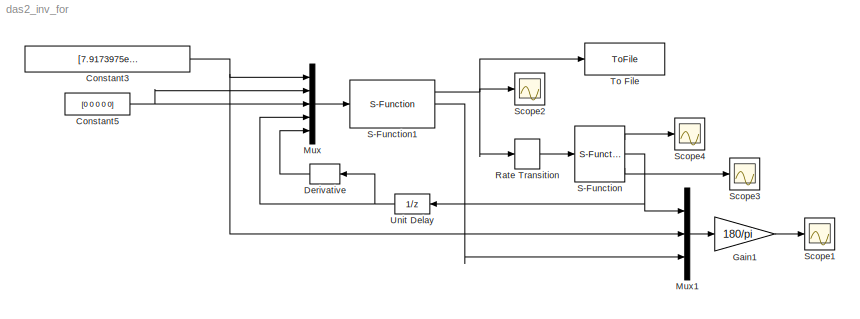
MODEL das2_inv_for
KIND model
BLOCK [Constant] Constant3
  SampleTime = 0.001
  Value = [7.9173975e-001  3.2125049e-001 -1.4018355e+000  2.3036411e-001  1.8730804e+000]
BLOCK [Constant] Constant5
  SampleTime = 0.001
  Value = [0 0 0 0 0]
BLOCK [Derivative] Derivative
BLOCK [Gain] Gain1
  Gain = 180/pi
  OutDataTypeMode = Inherit via internal rule
  ParameterDataTypeMode = Inherit via internal rule
  SaturateOnIntegerOverflow = off
BLOCK [Mux] Mux
  DisplayOption = bar
  Inputs = 5
  Ports = [5, 1]
BLOCK [Mux] Mux1
  DisplayOption = bar
  Inputs = 3
  Ports = [3, 1]
BLOCK [RateTransition] Rate Transition
BLOCK [S-Function] S-Function
  FunctionName = das2sim
  Ports = [1, 3]
BLOCK [S-Function] S-Function1
  FunctionName = das2sim_inverse
  Ports = [1, 3]
BLOCK [Scope] Scope1
  DataFormat = Array
  Floating = off
  LimitDataPoints = off
  NumInputPorts = 1
  Ports = [1]
  SampleTime = 0
  SaveName = angles
  SaveToWorkspace = on
  YMax = 125
  YMin = -100
  ZoomMode = yonly
BLOCK [Scope] Scope2
  DataFormat = Array
  Floating = off
  LimitDataPoints = off
  NumInputPorts = 1
  Ports = [1]
  SampleTime = 0
  SaveName = act
  SaveToWorkspace = on
  YMax = 1
  YMin = 0
BLOCK [Scope] Scope3
  DataFormat = StructureWithTime
  Floating = off
  LimitDataPoints = off
  NumInputPorts = 1
  Ports = [1]
  SampleTime = 0
  YMax = 0.3
  YMin = 0
  ZoomMode = yonly
BLOCK [Scope] Scope4
  DataFormat = StructureWithTime
  Floating = off
  LimitDataPoints = off
  NumInputPorts = 1
  Ports = [1]
  SampleTime = 0
  SaveName = ScopeData3
  YMax = 1500
  YMin = -100
BLOCK [ToFile] To File
  Decimation = 10
  Filename = activations.mat
  MatrixName = act
BLOCK [UnitDelay] Unit Delay
  SampleTime = -1
  X0 = [7.9173975e-001  3.2125049e-001 -1.4018355e+000  2.3036411e-001  1.8730804e+000]
NET Constant3:1 -> Mux1:2, Mux:1
NET Constant5:1 -> Mux:2, Mux:3
LINE Derivative:1 -> Mux:5
LINE Gain1:1 -> Scope1:1
LINE Mux1:1 -> Gain1:1
LINE Mux:1 -> S-Function1:1
LINE Rate Transition:1 -> S-Function:1
NET S-Function1:1 -> Rate Transition:1, Scope2:1, To File:1
LINE S-Function1:2 -> Mux1:3
LINE S-Function:1 -> Scope4:1
NET S-Function:2 -> Mux1:1, Unit Delay:1
LINE S-Function:3 -> Scope3:1
NET Unit Delay:1 -> Derivative:1, Mux:4
note: NET lines group one-source signal fan-out (src -> all destinations, sorted); 1:1 wires keep LINE
